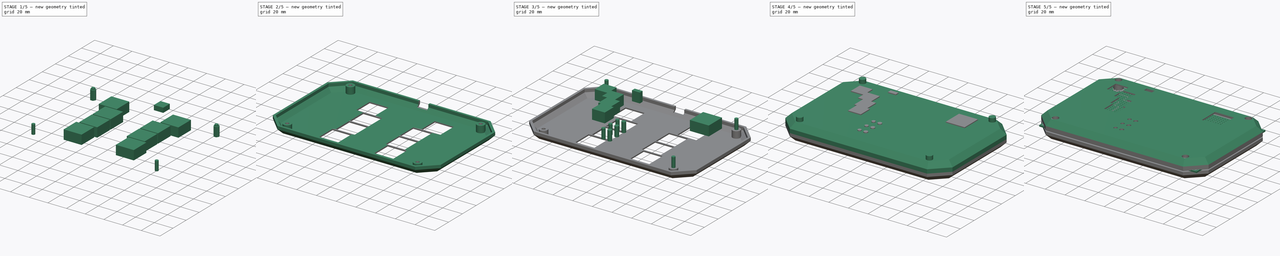
[diagram: build sequence overview — one tinted view per stage of 5, left to right]
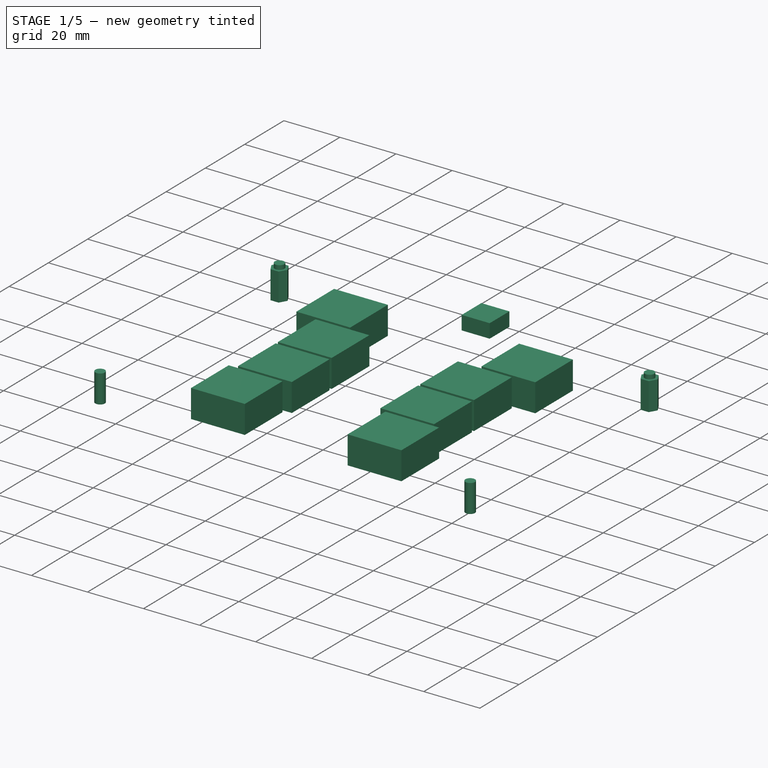
[diagram: stage 1 of 5 — iso view after this stage's code; geometry added in this stage tinted green]
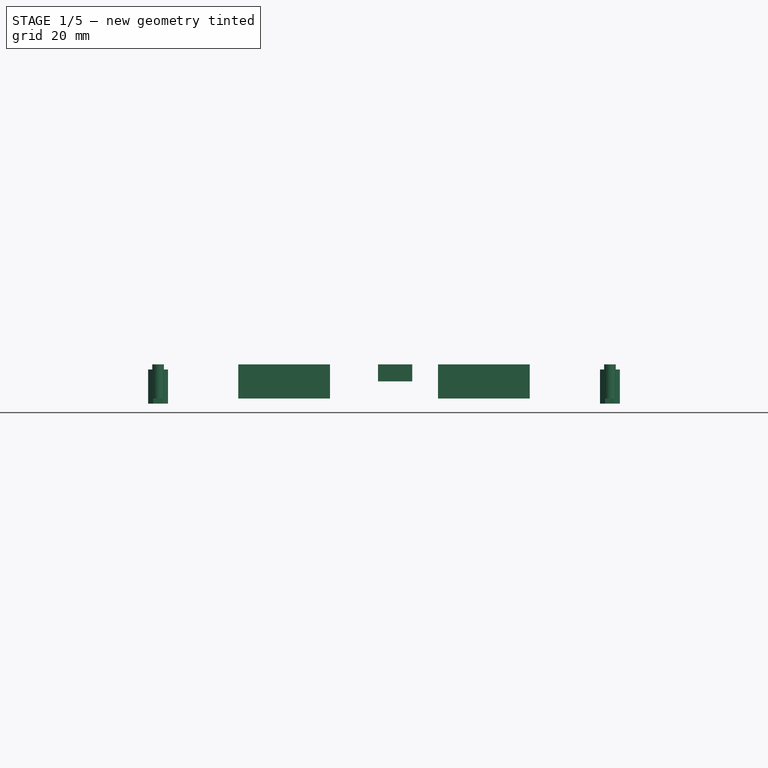
[diagram: stage 1 of 5 — front view after this stage's code; geometry added in this stage tinted green]
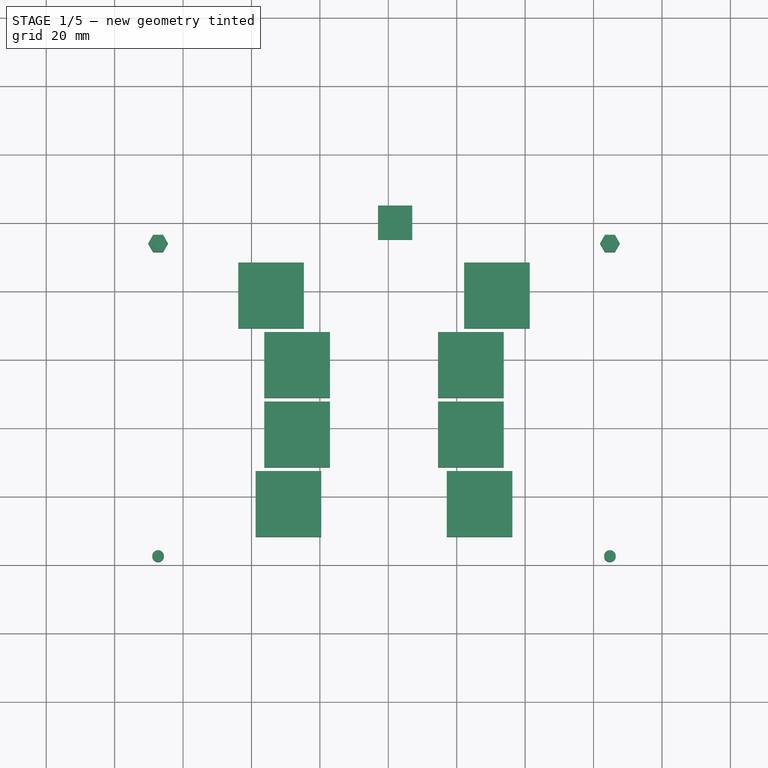
[diagram: stage 1 of 5 — top view after this stage's code; geometry added in this stage tinted green]
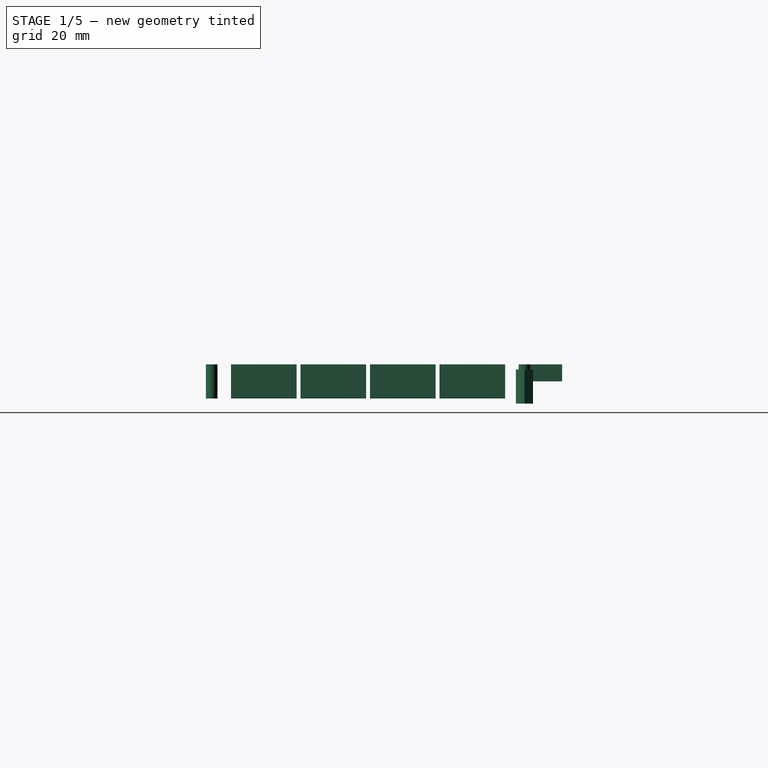
[diagram: stage 1 of 5 — right view after this stage's code; geometry added in this stage tinted green]
FCSTD DOCUMENT  (FreeCAD 0.16R6712 (Git))
Label: voctoplay 0.11
License: CreativeCommons Attribution
LicenseURL: http://creativecommons.org/licenses/by/4.0/
objects: Part::Cylinder×32, Part::Box×16, Part::Cut×8, Part::MultiFuse×8, Sketcher::SketchObject×4, Part::Extrusion×4, Part::Chamfer×4, Part::Prism×4, Part::FeaturePython×2, Drawing::FeatureViewPart×2, Drawing::FeatureViewAnnotation×2, Spreadsheet::Sheet×1, Drawing::FeaturePage×1
note: 82 computed .brp shape members not serialized (recipe doc carries the construction recipe); baked Part::Feature solids carry a one-line shape summary decoded from their .brp

FEATURE [Part::Prism] Prism002  label="Prisma002"
  Circumradius = 2.9
  Height = 10
  Placement = pos=(12.7,93.98,-11.5) rot=(0,0,1;0rad)
  Polygon = 6
  expr: Placement.Base.x = 2.54 * 5
  expr: Placement.Base.y = 2.54 * 37
FEATURE [Part::Prism] Prism003  label="Prisma003"
  Circumradius = 2.9
  Height = 10
  Placement = pos=(144.78,93.98,-11.5) rot=(0,0,1;0rad)
  Polygon = 6
  expr: Placement.Base.x = 2.54 * 57
  expr: Placement.Base.y = 2.54 * 37
FEATURE [Part::Cylinder] Cylinder022  label="Zylinder022"
  Angle = 360
  Height = 10
  Placement = pos=(144.78,93.98,-10) rot=(0,0,1;0rad)
  Radius = 1.7
  expr: Placement.Base.x = 2.54 * 57
  expr: Placement.Base.y = 2.54 * 37
  expr: Placement.Base.z = -10
FEATURE [Part::Cylinder] Cylinder023  label="Zylinder023"
  Angle = 360
  Height = 10
  Placement = pos=(12.7,93.98,-10) rot=(0,0,1;0rad)
  Radius = 1.7
  expr: Placement.Base.y = 2.54 * 37
  expr: Placement.Base.x = 2.54 * 5
  expr: Placement.Base.z = -10
FEATURE [Part::Cylinder] Cylinder024  label="Zylinder024"
  Angle = 360
  Height = 10
  Placement = pos=(144.78,2.54,-10) rot=(0,0,1;0rad)
  Radius = 1.7
  expr: Placement.Base.y = 2.54
  expr: Placement.Base.x = 2.54 * 57
  expr: Placement.Base.z = -10
FEATURE [Part::Cylinder] Cylinder025  label="Zylinder025"
  Angle = 360
  Height = 10
  Placement = pos=(12.7,2.54,-10) rot=(0,0,1;0rad)
  Radius = 1.7
  expr: Placement.Base.x = 2.54 * 5
  expr: Placement.Base.y = 2.54
  expr: Placement.Base.z = -10
FEATURE [Part::Box] Box006  label="groß001"
  Height = 10
  Length = 19.2
  Placement = pos=(102.16,69.14,-10) rot=(0,0,1;0rad)
  Width = 19.2
  expr: Placement.Base.y = 31 * 2.54 - 9.6
  expr: Placement.Base.x = 44 * 2.54 - 9.6
FEATURE [Part::Box] Box007  label="groß002"
  Height = 10
  Length = 19.2
  Placement = pos=(94.54,48.82,-10) rot=(0,0,1;0rad)
  Width = 19.2
  expr: Placement.Base.y = 23 * 2.54 - 9.6
  expr: Placement.Base.x = 41 * 2.54 - 9.6
FEATURE [Part::Box] Box008  label="groß003"
  Height = 10
  Length = 19.2
  Placement = pos=(94.54,28.5,-10) rot=(0,0,1;0rad)
  Width = 19.2
  expr: Placement.Base.y = 15 * 2.54 - 9.6
  expr: Placement.Base.x = 41 * 2.54 - 9.6
FEATURE [Part::Box] Box009  label="groß004"
  Height = 10
  Length = 19.2
  Placement = pos=(97.08,8.18,-10) rot=(0,0,1;0rad)
  Width = 19.2
  expr: Placement.Base.y = 7 * 2.54 - 9.6
  expr: Placement.Base.x = 42 * 2.54 - 9.6
FEATURE [Part::Box] Box010  label="groß005"
  Height = 10
  Length = 19.2
  Placement = pos=(41.2,8.18,-10) rot=(0,0,1;0rad)
  Width = 19.2
  expr: Placement.Base.y = 7 * 2.54 - 9.6
  expr: Placement.Base.x = 20 * 2.54 - 9.6
FEATURE [Part::Box] Box011  label="groß006"
  Height = 10
  Length = 19.2
  Placement = pos=(43.74,28.5,-10) rot=(0,0,1;0rad)
  Width = 19.2
  expr: Placement.Base.y = 15 * 2.54 - 9.6
  expr: Placement.Base.x = 21 * 2.54 - 9.6
FEATURE [Part::Box] Box012  label="groß007"
  Height = 10
  Length = 19.2
  Placement = pos=(43.74,48.82,-10) rot=(0,0,1;0rad)
  Width = 19.2
  expr: Placement.Base.y = 23 * 2.54 - 9.6
  expr: Placement.Base.x = 21 * 2.54 - 9.6
FEATURE [Part::Box] Box013  label="groß008"
  Height = 10
  Length = 19.2
  Placement = pos=(36.12,69.14,-10) rot=(0,0,1;0rad)
  Width = 19.2
  expr: Placement.Base.y = 31 * 2.54 - 9.6
  expr: Placement.Base.x = 18 * 2.54 - 9.6
FEATURE [Part::Box] Box015  label="usb buchse"
  Height = 5
  Length = 10
  Placement = pos=(77,95,-5) rot=(0,0,1;0rad)
  Width = 10
  expr: Placement.Base.z = -5
FEATURE [Part::MultiFuse] Fusion009
  Shapes = -> [Box009,Box006,Box007,Box008,Box010,Box011,Box012,Box013,Box015]
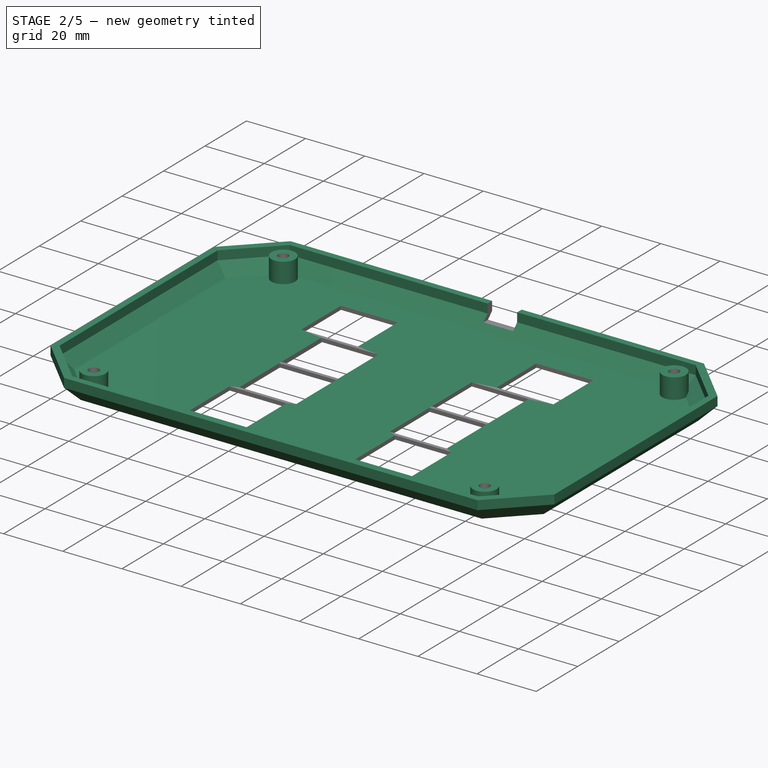
[diagram: stage 2 of 5 — iso view after this stage's code; geometry added in this stage tinted green]
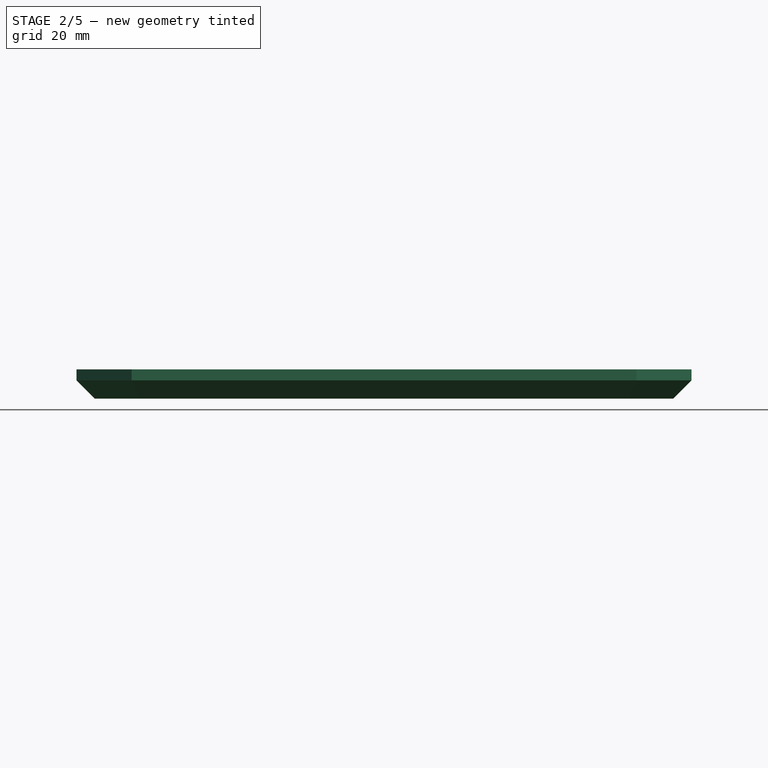
[diagram: stage 2 of 5 — front view after this stage's code; geometry added in this stage tinted green]
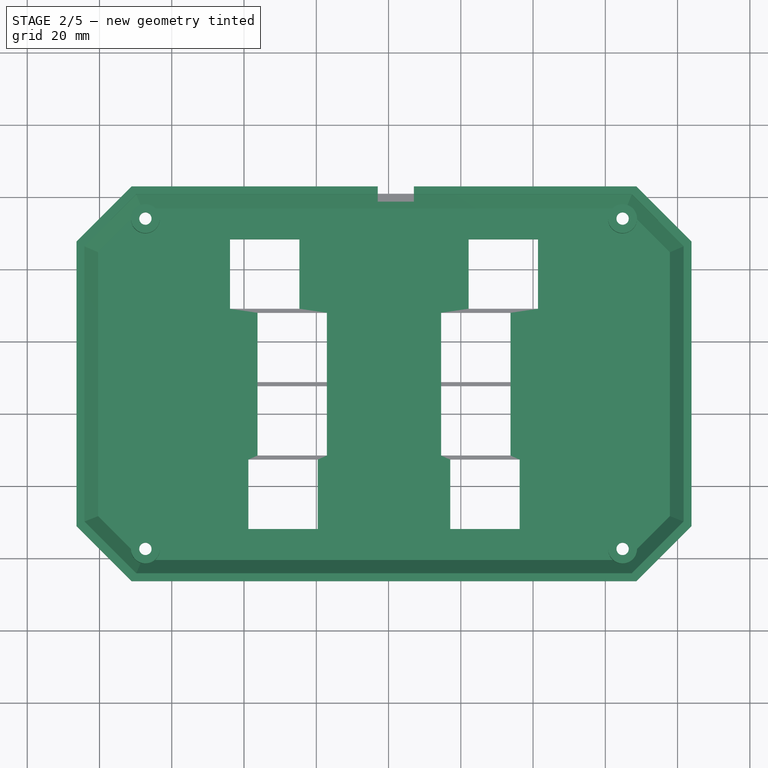
[diagram: stage 2 of 5 — top view after this stage's code; geometry added in this stage tinted green]
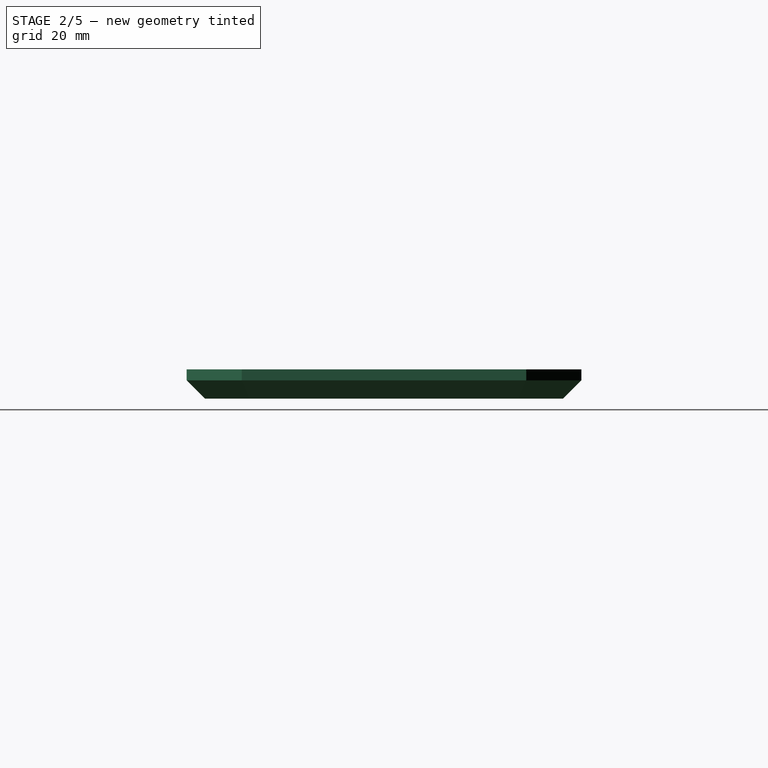
[diagram: stage 2 of 5 — right view after this stage's code; geometry added in this stage tinted green]
FEATURE [Sketcher::SketchObject] Sketch002
  expr: Constraints[23] = 4 * 2.54
  expr: Constraints[22] = 4 * 2.54
  expr: Constraints[21] = 54 * 2.54
  expr: Constraints[20] = 8 * 2.54
  expr: Constraints[19] = 30 * 2.54
  sketch-geometry (8):
    g0: LineSegment StartX=-4.20841 StartY=86.36 StartZ=0 EndX=10.16 EndY=100.728 EndZ=0
    g1: LineSegment StartX=10.16 StartY=100.728 StartZ=0 EndX=147.32 EndY=100.728 EndZ=0
    g2: LineSegment StartX=147.32 StartY=100.728 StartZ=0 EndX=161.688 EndY=86.36 EndZ=0
    g3: LineSegment StartX=161.688 StartY=86.36 StartZ=0 EndX=161.688 EndY=10.16 EndZ=0
    g4: LineSegment StartX=161.688 StartY=10.16 StartZ=0 EndX=147.32 EndY=-4.20841 EndZ=0
    g5: LineSegment StartX=147.32 StartY=-4.20841 StartZ=0 EndX=10.16 EndY=-4.20841 EndZ=0
    g6: LineSegment StartX=10.16 StartY=-4.20841 StartZ=0 EndX=-4.20841 EndY=10.16 EndZ=0
    g7: LineSegment StartX=-4.20841 StartY=10.16 StartZ=0 EndX=-4.20841 EndY=86.36 EndZ=0
  constraints (24):
    c: Coincident(g0,g1)
    c: Horizontal(g1)
    c: Coincident(g1,g2)
    c: Coincident(g2,g3)
    c: Vertical(g3)
    c: Coincident(g3,g4)
    c: Coincident(g4,g5)
    c: Horizontal(g5)
    c: Coincident(g5,g6)
    c: Coincident(g6,g7)
    c: Coincident(g7,g0)
    c: Vertical(g7)
    c: Parallel(g6,g2)
    c: Parallel(g0,g4)
    c: Angle(g-2,g0) = 2.35619
    c: Angle(g-2,g6) = 0.785398
    c: Equal(g0,g6)
    c: Equal(g6,g4)
    c: Equal(g4,g2)
    c: DistanceY(g7,g7) = 76.2
    c: Distance(g6) = 20.32
    c: DistanceX(g5,g5) = 137.16
    c: DistanceX(g-1,g5) = 10.16
    c: DistanceY(g-1,g6) = 10.16
FEATURE [Sketcher::SketchObject] Sketch003
  expr: Constraints[23] = 3.5 * 2.54
  expr: Constraints[22] = 3.5 * 2.54
  expr: Constraints[21] = 55 * 2.54
  expr: Constraints[20] = 8.5 * 2.54
  expr: Constraints[19] = 31 * 2.54
  sketch-geometry (8):
    g0: LineSegment StartX=-6.37644 StartY=87.63 StartZ=0 EndX=8.89 EndY=102.896 EndZ=0
    g1: LineSegment StartX=8.89 StartY=102.896 StartZ=0 EndX=148.59 EndY=102.896 EndZ=0
    g2: LineSegment StartX=148.59 StartY=102.896 StartZ=0 EndX=163.856 EndY=87.63 EndZ=0
    g3: LineSegment StartX=163.856 StartY=87.63 StartZ=0 EndX=163.856 EndY=8.89 EndZ=0
    g4: LineSegment StartX=163.856 StartY=8.89 StartZ=0 EndX=148.59 EndY=-6.37644 EndZ=0
    g5: LineSegment StartX=148.59 StartY=-6.37644 StartZ=0 EndX=8.89 EndY=-6.37644 EndZ=0
    g6: LineSegment StartX=8.89 StartY=-6.37644 StartZ=0 EndX=-6.37644 EndY=8.89 EndZ=0
    g7: LineSegment StartX=-6.37644 StartY=8.89 StartZ=0 EndX=-6.37644 EndY=87.63 EndZ=0
  constraints (24):
    c: Coincident(g0,g1)
    c: Horizontal(g1)
    c: Coincident(g1,g2)
    c: Coincident(g2,g3)
    c: Vertical(g3)
    c: Coincident(g3,g4)
    c: Coincident(g4,g5)
    c: Horizontal(g5)
    c: Coincident(g5,g6)
    c: Coincident(g6,g7)
    c: Coincident(g7,g0)
    c: Vertical(g7)
    c: Parallel(g6,g2)
    c: Parallel(g0,g4)
    c: Angle(g-2,g0) = 2.35619
    c: Angle(g-2,g6) = 0.785398
    c: Equal(g0,g6)
    c: Equal(g6,g4)
    c: Equal(g4,g2)
    c: DistanceY(g7,g7) = 78.74
    c: Distance(g6) = 21.59
    c: DistanceX(g5,g5) = 139.7
    c: DistanceX(g-1,g5) = 8.89
    c: DistanceY(g-1,g6) = 8.89
FEATURE [Part::Extrusion] Extrude002
  Base = -> Sketch003
  Dir = (0,0,-8.12)
  Solid = true
  expr: Dir.z = -0.5 - 2.54 * 3
FEATURE [Part::Extrusion] Extrude003
  Base = -> Sketch002
  Dir = (0,0,-6.85)
  Solid = true
  expr: Dir.z = -0.5 - 2.54 * 2.5
FEATURE [Part::Chamfer] Chamfer002
  Base = -> Extrude002
  Edges = 8 edges r=5.08: [Edge4,Edge7,Edge10,Edge13,Edge16,Edge19,Edge22,Edge24]
FEATURE [Part::Chamfer] Chamfer003
  Base = -> Extrude003
  Edges = 8 edges r=3.81: [Edge4,Edge7,Edge10,Edge13,Edge16,Edge19,Edge22,Edge24]
FEATURE [Part::Cut] Cut004  label="Cut unten"
  Base = -> Chamfer002
  Tool = -> Chamfer003
FEATURE [Part::Cylinder] Cylinder010  label="Zylinder010"
  Angle = 360
  Height = 6.85
  Placement = pos=(12.7,2.54,-6.85) rot=(0,0,1;0rad)
  Radius = 4
  expr: Placement.Base.y = 2.54
  expr: Placement.Base.x = 2.54 * 5
  expr: Height = 0.5 + 2.54 * 2.5
  expr: Placement.Base.z = -0.5 - 2.54 * 2.5
FEATURE [Part::Cylinder] Cylinder011  label="Zylinder011"
  Angle = 360
  Height = 6.85
  Placement = pos=(144.78,2.54,-6.85) rot=(0,0,1;0rad)
  Radius = 4
  expr: Placement.Base.y = 2.54
  expr: Placement.Base.x = 2.54 * 57
  expr: Height = 0.5 + 2.54 * 2.5
  expr: Placement.Base.z = -0.5 - 2.54 * 2.5
FEATURE [Part::Cylinder] Cylinder012  label="Zylinder012"
  Angle = 360
  Height = 6.85
  Placement = pos=(12.7,93.98,-6.85) rot=(0,0,1;0rad)
  Radius = 4
  expr: Placement.Base.y = 2.54 * 37
  expr: Placement.Base.x = 2.54 * 5
  expr: Height = 0.5 + 2.54 * 2.5
  expr: Placement.Base.z = -0.5 - 2.54 * 2.5
FEATURE [Part::Cylinder] Cylinder013  label="Zylinder013"
  Angle = 360
  Height = 6.85
  Placement = pos=(144.78,93.98,-6.85) rot=(0,0,1;0rad)
  Radius = 4
  expr: Placement.Base.y = 2.54 * 37
  expr: Placement.Base.x = 2.54 * 57
  expr: Height = 0.5 + 2.54 * 2.5
  expr: Placement.Base.z = -0.5 - 2.54 * 2.5
FEATURE [Part::MultiFuse] Fusion002  label="Fusion unten"
  Shapes = -> [Cylinder013,Cut004,Cylinder012,Cylinder011,Cylinder010]
FEATURE [Part::Prism] Prism  label="Prisma"
  Circumradius = 2.9
  Height = 10
  Placement = pos=(12.7,2.54,-11.5) rot=(0,0,1;0rad)
  Polygon = 6
  expr: Placement.Base.x = 2.54 * 5
  expr: Placement.Base.y = 2.54
FEATURE [Part::Prism] Prism001  label="Prisma001"
  Circumradius = 2.9
  Height = 10
  Placement = pos=(144.78,2.54,-11.5) rot=(0,0,1;0rad)
  Polygon = 6
  expr: Placement.Base.x = 2.54 * 57
  expr: Placement.Base.y = 2.54
FEATURE [Part::MultiFuse] Fusion004  label="Fusion minus unten"
  Shapes = -> [Prism,Prism001,Prism002,Cylinder022,Cylinder025,Cylinder024,Cylinder023,Prism003]
FEATURE [Part::Cut] Cut006
  Base = -> Fusion002
  Tool = -> Fusion004
FEATURE [Part::Cut] Cut010  label="unten"
  Base = -> Cut006
  Tool = -> Fusion009
FEATURE [Drawing::FeatureViewPart] Ortho  label="Ortho_0_0"
  Direction = (0,0,-1)
  HiddenWidth = 0.15
  LineWidth = 0.35
  Rotation = 0
  ShowHiddenLines = false
  ShowSmoothLines = false
  Source = -> Cut010
  Tolerance = 0.05
  ViewResult = <blob: 5567 chars omitted>
  Visible = true
  X = 183.74
  Y = 268.26
FEATURE [Drawing::FeatureViewPart] Ortho001  label="Ortho_0_001"
  Direction = (0,0,1)
  HiddenWidth = 0.15
  LineWidth = 0.35
  Rotation = 0
  ShowHiddenLines = false
  ShowSmoothLines = false
  Source = -> Cut009
  Tolerance = 0.05
  ViewResult = <blob: 3506 chars omitted>
  Visible = true
  X = 26.26
  Y = 138.26
FEATURE [Drawing::FeatureViewAnnotation] Annotation  label="Annotation vorne"
  Font = Sans
  Rotation = 0
  Scale = 5
  Text = vorne
  ViewResult = <g transform="translate(95,30) rotate(0)">\n<text id="Annotation vorne"\n font-family="Sans"\n font-size="5"\n fill="#000000">\n<tspan x="0" dy="1em">vorne</tspan>\n<tspan x="0" dy="1em"></tspan>\n</text>\n</g>
  Visible = true
  X = 95
  Y = 30
FEATURE [Drawing::FeatureViewAnnotation] Annotation001  label="Annotation hinten"
  Font = Sans
  Rotation = 0
  Scale = 5
  Text = hinten
  ViewResult = <g transform="translate(95,160) rotate(0)">\n<text id="Annotation hinten"\n font-family="Sans"\n font-size="5"\n fill="#000000">\n<tspan x="0" dy="1em">hinten</tspan>\n</text>\n</g>
  Visible = true
  X = 95
  Y = 160
FEATURE [Drawing::FeaturePage] Page  label="Papier drucken"
  Group = -> [Ortho,Ortho001,Annotation,Annotation001]
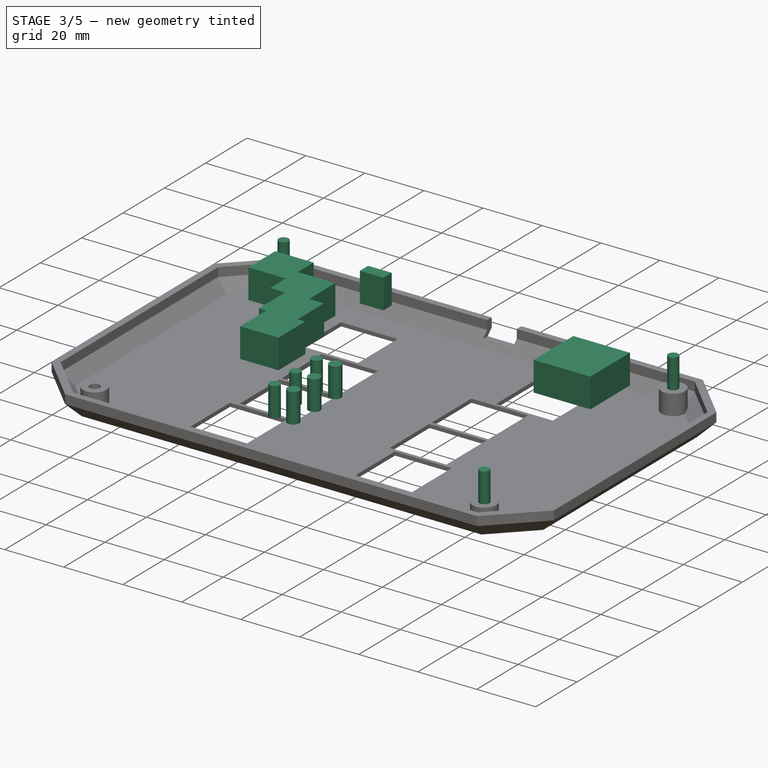
[diagram: stage 3 of 5 — iso view after this stage's code; geometry added in this stage tinted green]
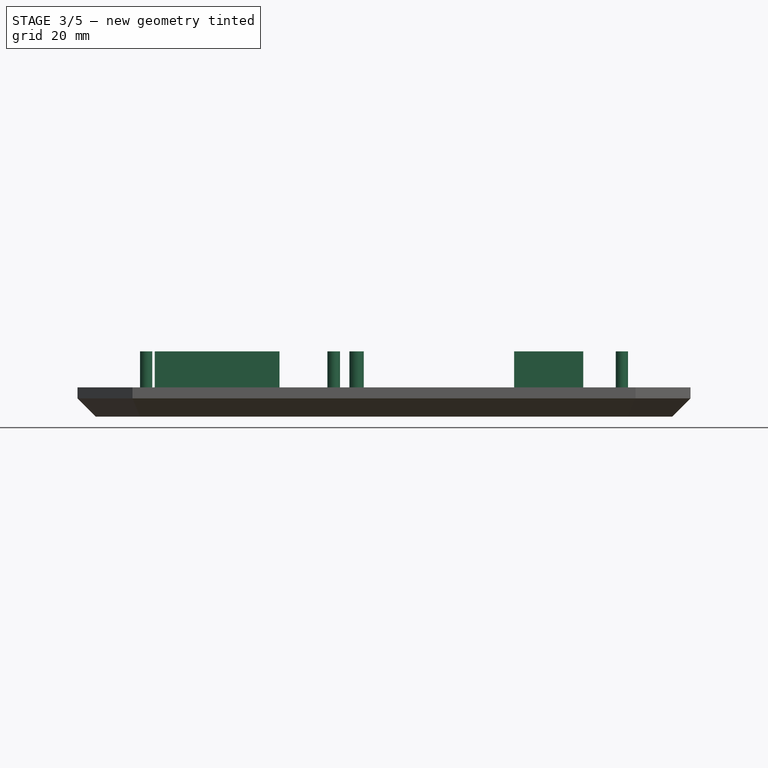
[diagram: stage 3 of 5 — front view after this stage's code; geometry added in this stage tinted green]
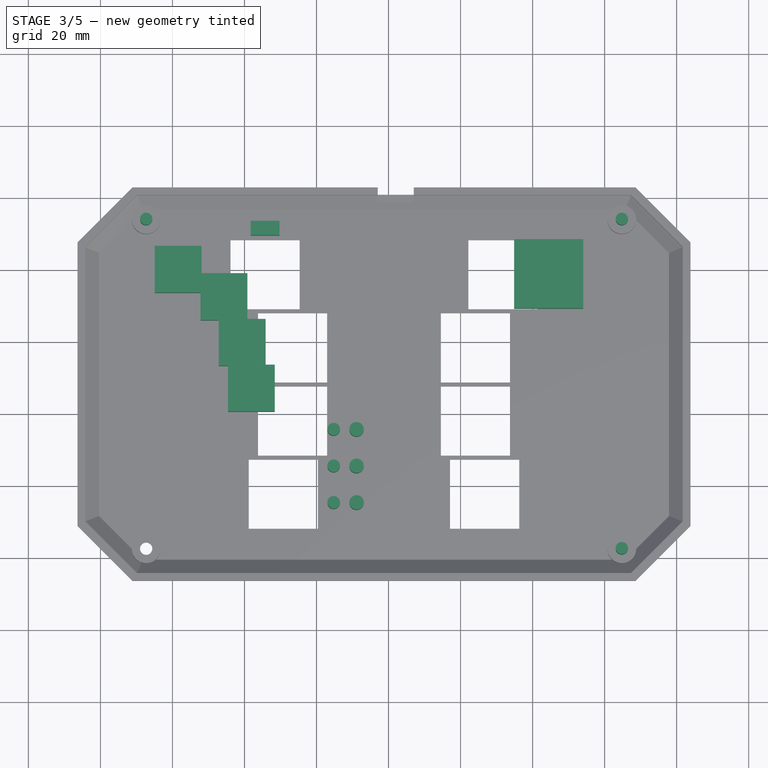
[diagram: stage 3 of 5 — top view after this stage's code; geometry added in this stage tinted green]
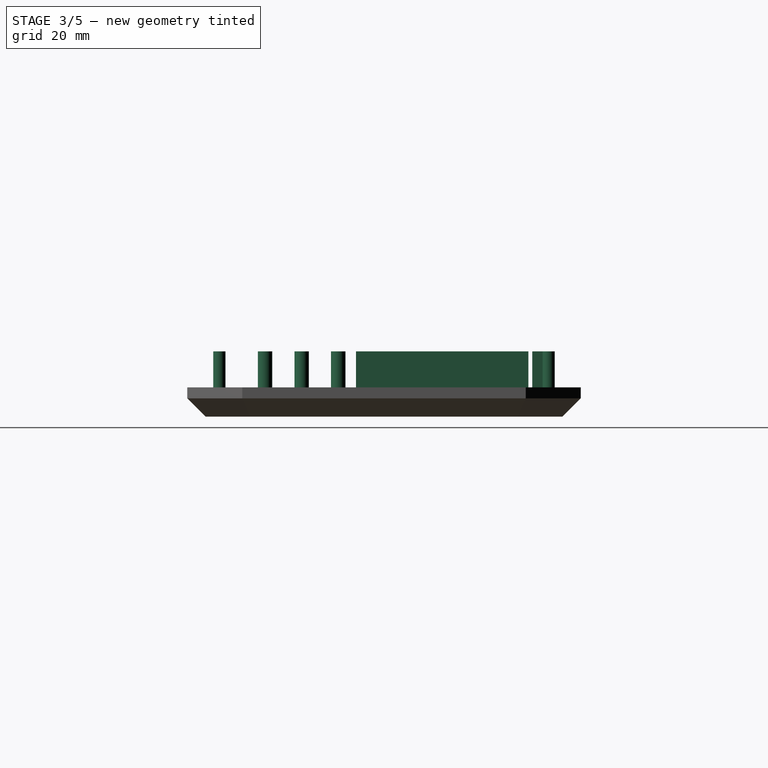
[diagram: stage 3 of 5 — right view after this stage's code; geometry added in this stage tinted green]
FEATURE [Part::Cylinder] Cylinder019  label="Zylinder019"
  Angle = 360
  Height = 10
  Placement = pos=(12.7,93.98,0) rot=(0,0,1;0rad)
  Radius = 1.7
  expr: Placement.Base.y = 2.54 * 37
  expr: Placement.Base.x = 2.54 * 5
  expr: Placement.Base.z = 0
FEATURE [Part::Cylinder] Cylinder020  label="Zylinder020"
  Angle = 360
  Height = 10
  Placement = pos=(144.78,2.54,0) rot=(0,0,1;0rad)
  Radius = 1.7
  expr: Placement.Base.y = 2.54
  expr: Placement.Base.x = 2.54 * 57
  expr: Placement.Base.z = 0
FEATURE [Part::Cylinder] Cylinder021  label="Zylinder021"
  Angle = 360
  Height = 10
  Placement = pos=(144.78,93.98,0) rot=(0,0,1;0rad)
  Radius = 1.7
  expr: Placement.Base.x = 2.54 * 57
  expr: Placement.Base.y = 2.54 * 37
  expr: Placement.Base.z = 0
FEATURE [Part::Box] Box001  label="klein"
  Height = 10
  Length = 13
  Placement = pos=(35.41,40.49,0) rot=(0,0,1;0rad)
  Width = 13
  expr: Placement.Base.y = 18.5 * 2.54 - 6.5
  expr: Placement.Base.x = 2.54 * 16.5 - 6.5
FEATURE [Part::Box] Box002  label="groß"
  Height = 10
  Length = 19.2
  Placement = pos=(114.86,69.14,0) rot=(0,0,1;0rad)
  Width = 19.2
  expr: Placement.Base.y = 31 * 2.54 - 9.6
  expr: Placement.Base.x = 49 * 2.54 - 9.6
FEATURE [Part::Box] Box003  label="klein001"
  Height = 10
  Length = 13
  Placement = pos=(32.87,53.19,0) rot=(0,0,1;0rad)
  Width = 13
  expr: Placement.Base.y = 23.5 * 2.54 - 6.5
  expr: Placement.Base.x = 2.54 * 15.5 - 6.5
FEATURE [Part::Box] Box004  label="klein002"
  Height = 10
  Length = 13
  Placement = pos=(27.79,65.89,0) rot=(0,0,1;0rad)
  Width = 13
  expr: Placement.Base.y = 28.5 * 2.54 - 6.5
  expr: Placement.Base.x = 2.54 * 13.5 - 6.5
FEATURE [Part::Box] Box005  label="klein003"
  Height = 10
  Length = 13
  Placement = pos=(15.09,73.51,0) rot=(0,0,1;0rad)
  Width = 13
  expr: Placement.Base.y = 31.5 * 2.54 - 6.5
  expr: Placement.Base.x = 2.54 * 8.5 - 6.5
FEATURE [Part::Cylinder] Cylinder026  label="Stream On"
  Angle = 360
  Height = 10
  Placement = pos=(71.12,15.24,0) rot=(0,0,1;0rad)
  Radius = 2
  expr: Placement.Base.y = 2.54 * 6
  expr: Placement.Base.x = 2.54 * 28
FEATURE [Part::Cylinder] Cylinder027  label="Stream Pause"
  Angle = 360
  Height = 10
  Placement = pos=(71.12,25.4,0) rot=(0,0,1;0rad)
  Radius = 2
  expr: Placement.Base.y = 2.54 * 10
  expr: Placement.Base.x = 2.54 * 28
FEATURE [Part::Cylinder] Cylinder028  label="NoStream"
  Angle = 360
  Height = 10
  Placement = pos=(71.12,35.56,0) rot=(0,0,1;0rad)
  Radius = 2
  expr: Placement.Base.y = 2.54 * 14
  expr: Placement.Base.x = 2.54 * 28
FEATURE [Part::Cylinder] Cylinder029  label="Zylinder029 rot"
  Angle = 360
  Height = 10
  Placement = pos=(64.77,15.24,0) rot=(0,0,1;0rad)
  Radius = 1.75
  expr: Placement.Base.y = 2.54 * 6
  expr: Placement.Base.x = 2.54 * 25.5
FEATURE [Part::Cylinder] Cylinder030  label="Zylinder030 rot"
  Angle = 360
  Height = 10
  Placement = pos=(64.77,25.4,0) rot=(0,0,1;0rad)
  Radius = 1.75
  expr: Placement.Base.y = 2.54 * 10
  expr: Placement.Base.x = 2.54 * 25.5
FEATURE [Part::Cylinder] Cylinder031  label="Zylinder031 gruen"
  Angle = 360
  Height = 10
  Placement = pos=(64.77,35.56,0) rot=(0,0,1;0rad)
  Radius = 1.75
  expr: Placement.Base.y = 2.54 * 14
  expr: Placement.Base.x = 2.54 * 25.5
FEATURE [Part::Box] Box014  label="Würfel on off"
  Height = 10
  Length = 8
  Placement = pos=(41.72,89.44,0) rot=(0,0,1;0rad)
  Width = 4
  expr: Placement.Base.y = 2.54 * 36 - 2
  expr: Placement.Base.x = 18 * 2.54 - 4
FEATURE [Part::MultiFuse] Fusion007  label="Fusion ausschnitte buttons"
  Shapes = -> [Box005,Box001,Box002,Box003,Box004,Box014,Cylinder030,Cylinder027,Cylinder026,Cylinder029,Cylinder028,Cylinder031]
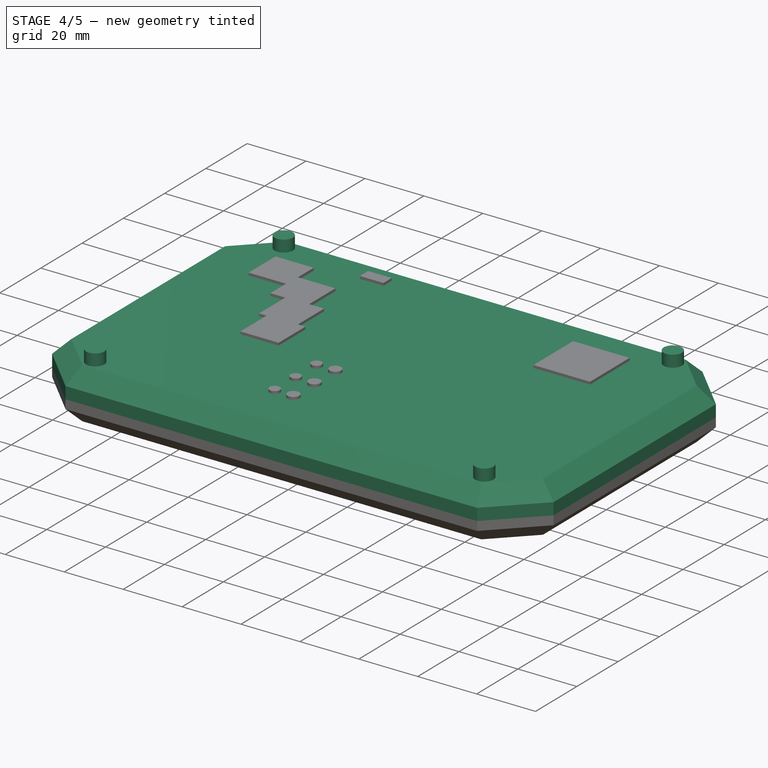
[diagram: stage 4 of 5 — iso view after this stage's code; geometry added in this stage tinted green]
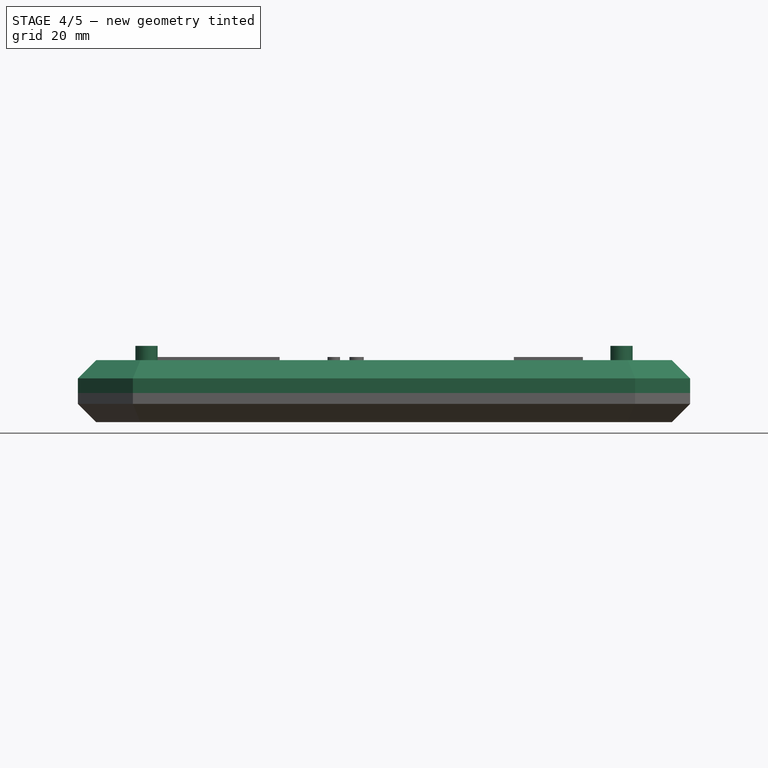
[diagram: stage 4 of 5 — front view after this stage's code; geometry added in this stage tinted green]
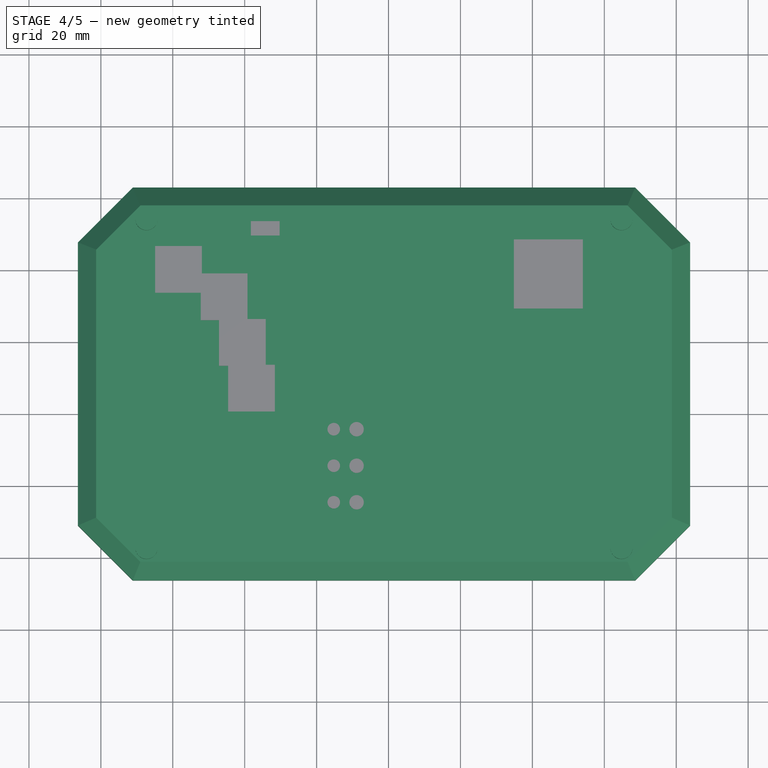
[diagram: stage 4 of 5 — top view after this stage's code; geometry added in this stage tinted green]
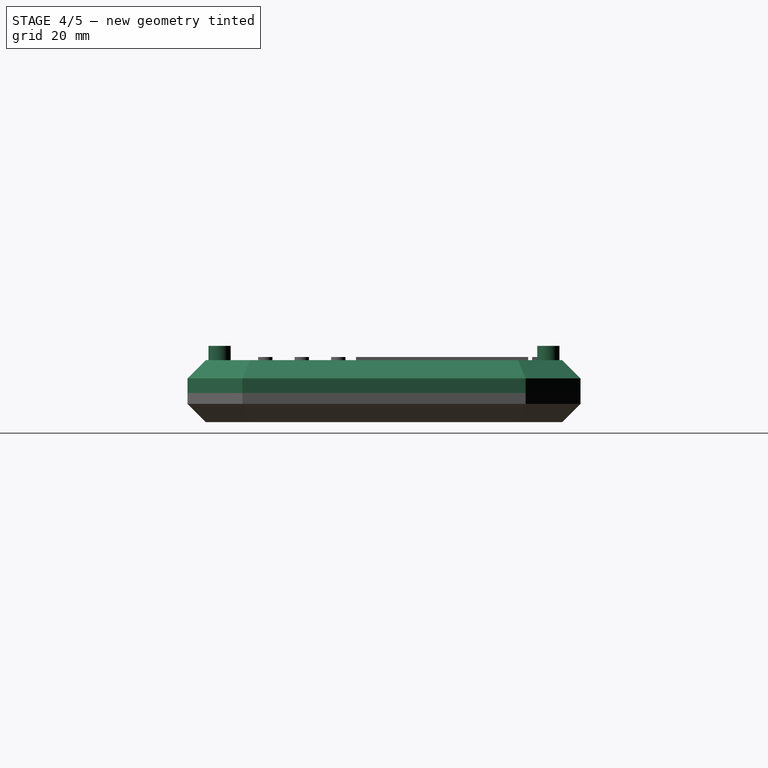
[diagram: stage 4 of 5 — right view after this stage's code; geometry added in this stage tinted green]
FEATURE [Sketcher::SketchObject] Sketch
  expr: Constraints[23] = 4 * 2.54
  expr: Constraints[22] = 4 * 2.54
  expr: Constraints[21] = 54 * 2.54
  expr: Constraints[20] = 8 * 2.54
  expr: Constraints[19] = 30 * 2.54
  sketch-geometry (8):
    g0: LineSegment StartX=-4.20841 StartY=86.36 StartZ=0 EndX=10.16 EndY=100.728 EndZ=0
    g1: LineSegment StartX=10.16 StartY=100.728 StartZ=0 EndX=147.32 EndY=100.728 EndZ=0
    g2: LineSegment StartX=147.32 StartY=100.728 StartZ=0 EndX=161.688 EndY=86.36 EndZ=0
    g3: LineSegment StartX=161.688 StartY=86.36 StartZ=0 EndX=161.688 EndY=10.16 EndZ=0
    g4: LineSegment StartX=161.688 StartY=10.16 StartZ=0 EndX=147.32 EndY=-4.20841 EndZ=0
    g5: LineSegment StartX=147.32 StartY=-4.20841 StartZ=0 EndX=10.16 EndY=-4.20841 EndZ=0
    g6: LineSegment StartX=10.16 StartY=-4.20841 StartZ=0 EndX=-4.20841 EndY=10.16 EndZ=0
    g7: LineSegment StartX=-4.20841 StartY=10.16 StartZ=0 EndX=-4.20841 EndY=86.36 EndZ=0
  constraints (24):
    c: Coincident(g0,g1)
    c: Horizontal(g1)
    c: Coincident(g1,g2)
    c: Coincident(g2,g3)
    c: Vertical(g3)
    c: Coincident(g3,g4)
    c: Coincident(g4,g5)
    c: Horizontal(g5)
    c: Coincident(g5,g6)
    c: Coincident(g6,g7)
    c: Coincident(g7,g0)
    c: Vertical(g7)
    c: Parallel(g6,g2)
    c: Parallel(g0,g4)
    c: Angle(g-2,g0) = 2.35619
    c: Angle(g-2,g6) = 0.785398
    c: Equal(g0,g6)
    c: Equal(g6,g4)
    c: Equal(g4,g2)
    c: DistanceY(g7,g7) = 76.2
    c: Distance(g6) = 20.32
    c: DistanceX(g5,g5) = 137.16
    c: DistanceX(g-1,g5) = 10.16
    c: DistanceY(g-1,g6) = 10.16
FEATURE [Sketcher::SketchObject] Sketch001
  expr: Constraints[23] = 3.5 * 2.54
  expr: Constraints[22] = 3.5 * 2.54
  expr: Constraints[21] = 55 * 2.54
  expr: Constraints[20] = 8.5 * 2.54
  expr: Constraints[19] = 31 * 2.54
  sketch-geometry (8):
    g0: LineSegment StartX=-6.37644 StartY=87.63 StartZ=0 EndX=8.89 EndY=102.896 EndZ=0
    g1: LineSegment StartX=8.89 StartY=102.896 StartZ=0 EndX=148.59 EndY=102.896 EndZ=0
    g2: LineSegment StartX=148.59 StartY=102.896 StartZ=0 EndX=163.856 EndY=87.63 EndZ=0
    g3: LineSegment StartX=163.856 StartY=87.63 StartZ=0 EndX=163.856 EndY=8.89 EndZ=0
    g4: LineSegment StartX=163.856 StartY=8.89 StartZ=0 EndX=148.59 EndY=-6.37644 EndZ=0
    g5: LineSegment StartX=148.59 StartY=-6.37644 StartZ=0 EndX=8.89 EndY=-6.37644 EndZ=0
    g6: LineSegment StartX=8.89 StartY=-6.37644 StartZ=0 EndX=-6.37644 EndY=8.89 EndZ=0
    g7: LineSegment StartX=-6.37644 StartY=8.89 StartZ=0 EndX=-6.37644 EndY=87.63 EndZ=0
  constraints (24):
    c: Coincident(g0,g1)
    c: Horizontal(g1)
    c: Coincident(g1,g2)
    c: Coincident(g2,g3)
    c: Vertical(g3)
    c: Coincident(g3,g4)
    c: Coincident(g4,g5)
    c: Horizontal(g5)
    c: Coincident(g5,g6)
    c: Coincident(g6,g7)
    c: Coincident(g7,g0)
    c: Vertical(g7)
    c: Parallel(g6,g2)
    c: Parallel(g0,g4)
    c: Angle(g-2,g0) = 2.35619
    c: Angle(g-2,g6) = 0.785398
    c: Equal(g0,g6)
    c: Equal(g6,g4)
    c: Equal(g4,g2)
    c: DistanceY(g7,g7) = 78.74
    c: Distance(g6) = 21.59
    c: DistanceX(g5,g5) = 139.7
    c: DistanceX(g-1,g5) = 8.89
    c: DistanceY(g-1,g6) = 8.89
FEATURE [Part::Extrusion] Extrude
  Base = -> Sketch001
  Dir = (0,0,9.12)
  Solid = true
  expr: Dir.z = 1.5 + 2.54 * 3
FEATURE [Part::Extrusion] Extrude001
  Base = -> Sketch
  Dir = (0,0,7.85)
  Solid = true
  expr: Dir.z = 1.5 + 2.54 * 2.5
FEATURE [Part::Chamfer] Chamfer
  Base = -> Extrude
  Edges = 8 edges r=5.08: [Edge4,Edge7,Edge10,Edge13,Edge16,Edge19,Edge22,Edge24]
FEATURE [Part::Chamfer] Chamfer001
  Base = -> Extrude001
  Edges = 8 edges r=3.81: [Edge4,Edge7,Edge10,Edge13,Edge16,Edge19,Edge22,Edge24]
FEATURE [Part::Cylinder] Cylinder006  label="Zylinder006"
  Angle = 360
  Height = 6.25
  Placement = pos=(12.7,2.54,1.6) rot=(0,0,1;0rad)
  Radius = 4.3
  expr: Placement.Base.y = 2.54
  expr: Placement.Base.x = 2.54 * 5
  expr: Height = 1.5 - Spreadsheet.tp + 2.54 * 2.5
  expr: Placement.Base.z = Spreadsheet.tp
FEATURE [Part::Cylinder] Cylinder007  label="Zylinder007"
  Angle = 360
  Height = 6.25
  Placement = pos=(144.78,2.54,1.6) rot=(0,0,1;0rad)
  Radius = 4.3
  expr: Placement.Base.y = 2.54
  expr: Placement.Base.x = 2.54 * 57
  expr: Height = 1.5 - Spreadsheet.tp + 2.54 * 2.5
  expr: Placement.Base.z = Spreadsheet.tp
FEATURE [Part::Cylinder] Cylinder008  label="Zylinder008"
  Angle = 360
  Height = 6.25
  Placement = pos=(12.7,93.98,1.6) rot=(0,0,1;0rad)
  Radius = 4.3
  expr: Placement.Base.y = 2.54 * 37
  expr: Placement.Base.x = 2.54 * 5
  expr: Height = 1.5 - Spreadsheet.tp + 2.54 * 2.5
  expr: Placement.Base.z = Spreadsheet.tp
FEATURE [Part::Cylinder] Cylinder009  label="Zylinder009"
  Angle = 360
  Height = 6.25
  Placement = pos=(144.78,93.98,1.6) rot=(0,0,1;0rad)
  Radius = 4.3
  expr: Placement.Base.y = 2.54 * 37
  expr: Placement.Base.x = 2.54 * 57
  expr: Height = 1.5 - Spreadsheet.tp + 2.54 * 2.5
  expr: Placement.Base.z = Spreadsheet.tp
FEATURE [Part::Cylinder] Cylinder014  label="Zylinder014"
  Angle = 360
  Height = 10
  Placement = pos=(12.7,2.54,3.1) rot=(0,0,1;0rad)
  Radius = 3.1
  expr: Placement.Base.x = 2.54 * 5
  expr: Placement.Base.y = 2.54
  expr: Placement.Base.z = Spreadsheet.tp + 1.5
FEATURE [Part::Cylinder] Cylinder015  label="Zylinder015"
  Angle = 360
  Height = 10
  Placement = pos=(12.7,93.98,3.1) rot=(0,0,1;0rad)
  Radius = 3.1
  expr: Placement.Base.y = 2.54 * 37
  expr: Placement.Base.x = 2.54 * 5
  expr: Placement.Base.z = Spreadsheet.tp + 1.5
FEATURE [Part::Cylinder] Cylinder016  label="Zylinder016"
  Angle = 360
  Height = 10
  Placement = pos=(144.78,2.54,3.1) rot=(0,0,1;0rad)
  Radius = 3.1
  expr: Placement.Base.y = 2.54
  expr: Placement.Base.x = 2.54 * 57
  expr: Placement.Base.z = Spreadsheet.tp + 1.5
FEATURE [Part::Cylinder] Cylinder017  label="Zylinder017"
  Angle = 360
  Height = 10
  Placement = pos=(144.78,93.98,3.1) rot=(0,0,1;0rad)
  Radius = 3.1
  expr: Placement.Base.x = 2.54 * 57
  expr: Placement.Base.y = 2.54 * 37
  expr: Placement.Base.z = Spreadsheet.tp + 1.5
FEATURE [Part::Cylinder] Cylinder018  label="Zylinder018"
  Angle = 360
  Height = 10
  Placement = pos=(12.7,2.54,0) rot=(0,0,1;0rad)
  Radius = 1.7
  expr: Placement.Base.x = 2.54 * 5
  expr: Placement.Base.y = 2.54
  expr: Placement.Base.z = 0
FEATURE [Part::MultiFuse] Fusion003  label="Fusion Schrauben-Löcher"
  Shapes = -> [Cylinder018,Cylinder014,Cylinder017,Cylinder020,Cylinder015,Cylinder019,Cylinder016,Cylinder021]
FEATURE [Part::MultiFuse] Fusion008
  Shapes = -> [Fusion007,Fusion003]
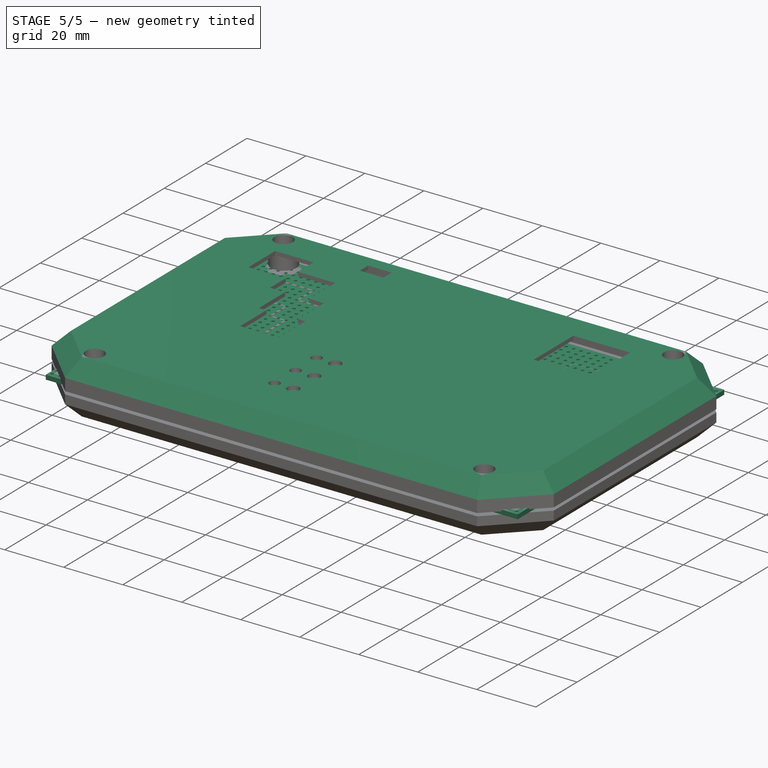
[diagram: stage 5 of 5 — iso view after this stage's code; geometry added in this stage tinted green]
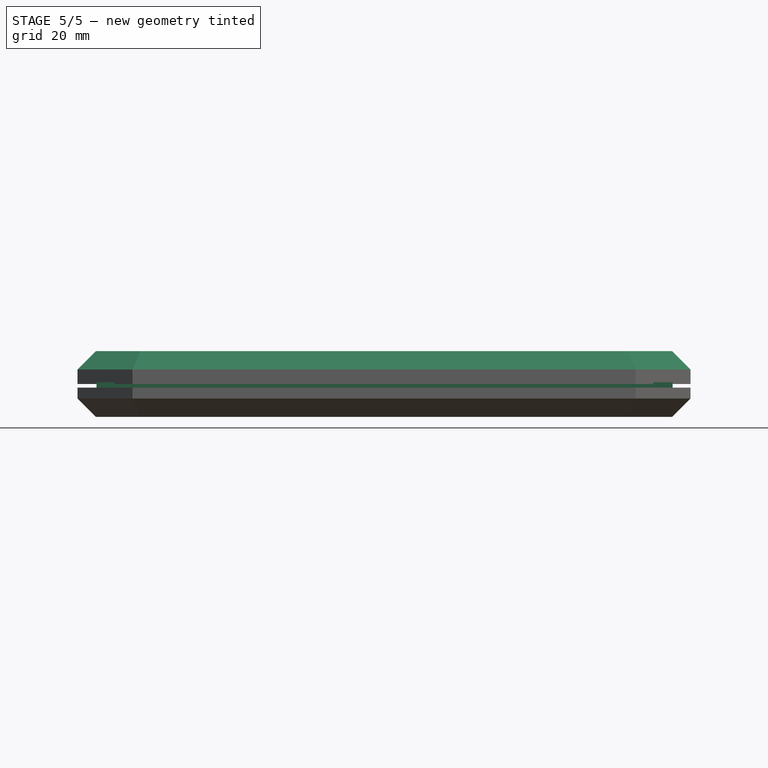
[diagram: stage 5 of 5 — front view after this stage's code; geometry added in this stage tinted green]
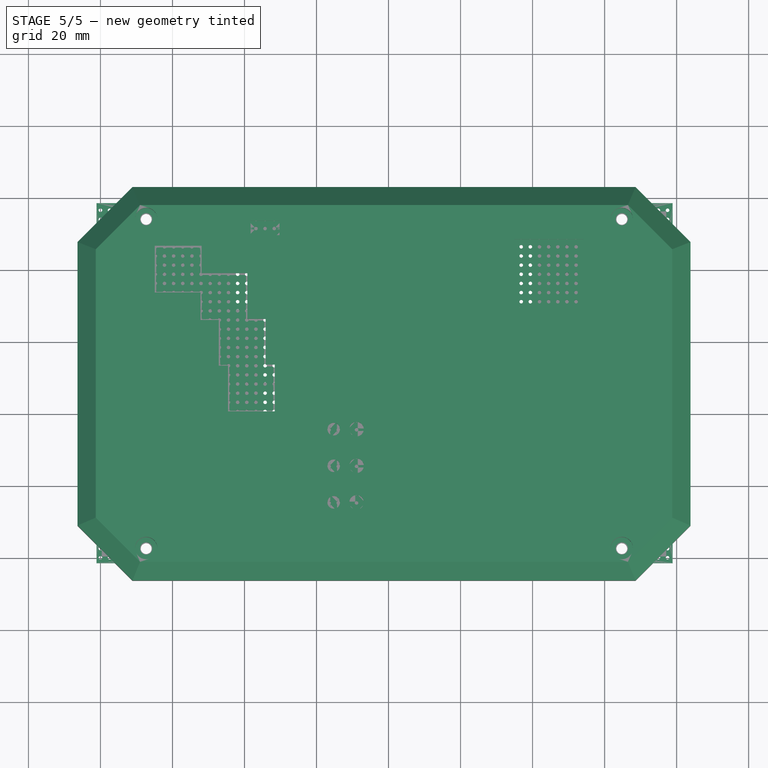
[diagram: stage 5 of 5 — top view after this stage's code; geometry added in this stage tinted green]
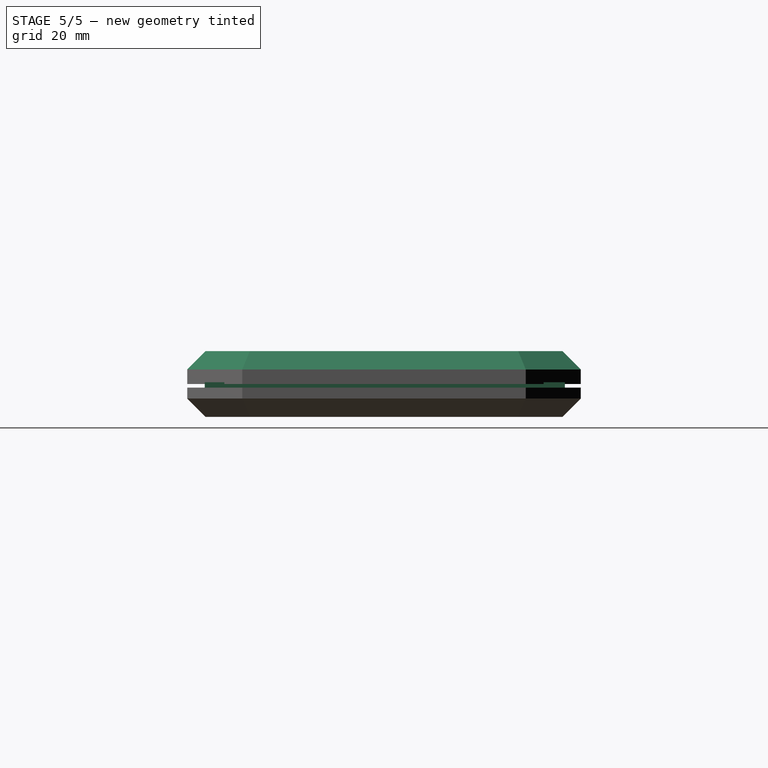
[diagram: stage 5 of 5 — right view after this stage's code; geometry added in this stage tinted green]
FEATURE [Part::Box] Box  label="Würfel"
  Height = 1.5
  Length = 160
  Placement = pos=(-1.1,-1.5,0) rot=(0,0,1;0rad)
  Width = 100
FEATURE [Part::Cylinder] Cylinder  label="Zylinder"
  Angle = 360
  Height = 2
  Radius = 0.5
FEATURE [Part::FeaturePython] Array  # Draft array (typed FeaturePython)
  Angle = 360
  ArrayType = 0
  Axis = (0,0,1)
  Base = -> Cylinder
  Center = (0,0,0)
  Fuse = false
  IntervalAxis = (0,0,0)
  IntervalX = (2.54,0,0)
  IntervalY = (0,2.54,0)
  IntervalZ = (0,0,0)
  NumberPolar = 1
  NumberX = 32
  NumberY = 39
  NumberZ = 1
FEATURE [Part::Cylinder] Cylinder001  label="Zylinder001"
  Angle = 360
  Height = 10
  Placement = pos=(12.7,2.54,0) rot=(0,0,1;0rad)
  Radius = 1.5
  expr: Placement.Base.y = 2.54
  expr: Placement.Base.x = 2.54 * 5
FEATURE [Part::Cylinder] Cylinder002  label="Zylinder002"
  Angle = 360
  Height = 10
  Placement = pos=(12.7,93.98,0) rot=(0,0,1;0rad)
  Radius = 1.5
  expr: Placement.Base.y = 2.54 * 37
  expr: Placement.Base.x = 2.54 * 5
FEATURE [Part::Cylinder] Cylinder003  label="Zylinder003"
  Angle = 360
  Height = 10
  Placement = pos=(144.78,2.54,0) rot=(0,0,1;0rad)
  Radius = 1.5
  expr: Placement.Base.y = 2.54
  expr: Placement.Base.x = 2.54 * 57
FEATURE [Part::Cylinder] Cylinder004  label="Zylinder004"
  Angle = 360
  Height = 10
  Placement = pos=(144.78,93.98,0) rot=(0,0,1;0rad)
  Radius = 1.5
  expr: Placement.Base.x = 2.54 * 57
  expr: Placement.Base.y = 2.54 * 37
FEATURE [Spreadsheet::Sheet] Spreadsheet
  cells = A2=perfboard thickness; B2(tp)=1.6; C2=mm
FEATURE [Part::Cylinder] Cylinder005  label="Zylinder005"
  Angle = 360
  Height = 2
  Radius = 0.5
FEATURE [Part::FeaturePython] Array001  # Draft array (typed FeaturePython)
  Angle = 360
  ArrayType = 0
  Axis = (0,0,1)
  Base = -> Cylinder005
  Center = (0,0,0)
  Fuse = false
  IntervalAxis = (0,0,0)
  IntervalX = (2.54,0,0)
  IntervalY = (0,2.54,0)
  IntervalZ = (0,0,0)
  NumberPolar = 1
  NumberX = 32
  NumberY = 39
  NumberZ = 1
  Placement = pos=(78.74,0,0) rot=(0,0,1;0rad)
FEATURE [Part::Cut] Cut
  Base = -> Box
  Tool = -> Array
FEATURE [Part::Cut] Cut001
  Base = -> Cut
  Tool = -> Array001
FEATURE [Part::MultiFuse] Fusion
  Shapes = -> [Cylinder004,Cylinder003,Cylinder002,Cylinder001]
FEATURE [Part::Cut] Cut002  label="Lochrasterplatine"
  Base = -> Cut001
  Tool = -> Fusion
FEATURE [Part::Cut] Cut003  label="Cut oben"
  Base = -> Chamfer
  Tool = -> Chamfer001
FEATURE [Part::MultiFuse] Fusion001  label="Fusion oben"
  Shapes = -> [Cylinder009,Cylinder008,Cylinder006,Cylinder007,Cut003]
FEATURE [Part::Cut] Cut009  label="oben"
  Base = -> Fusion001
  Placement = pos=(0,0,1) rot=(0,0,1;0rad)
  Tool = -> Fusion008
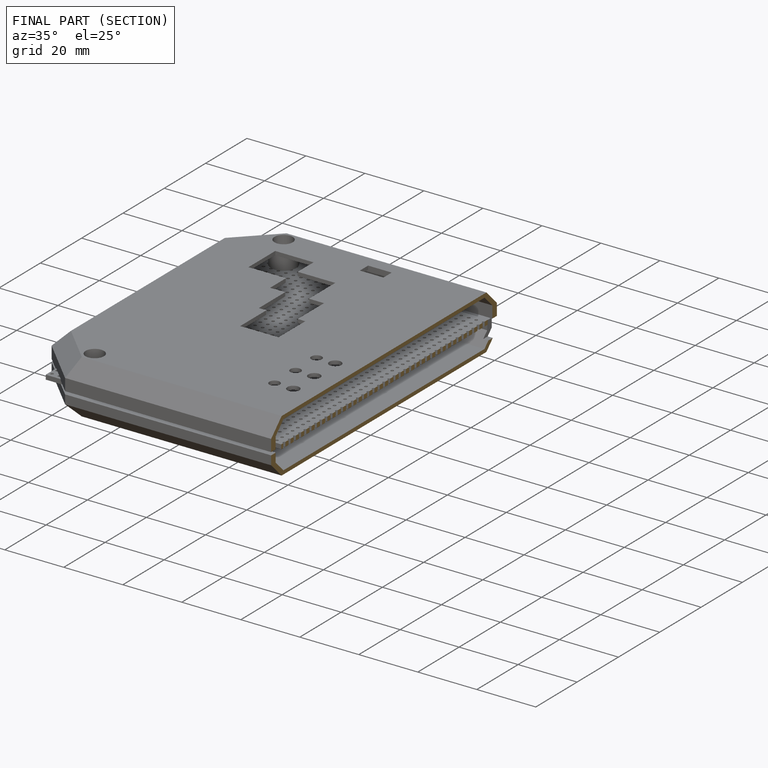
[diagram: finished part — half-section view (interior)]
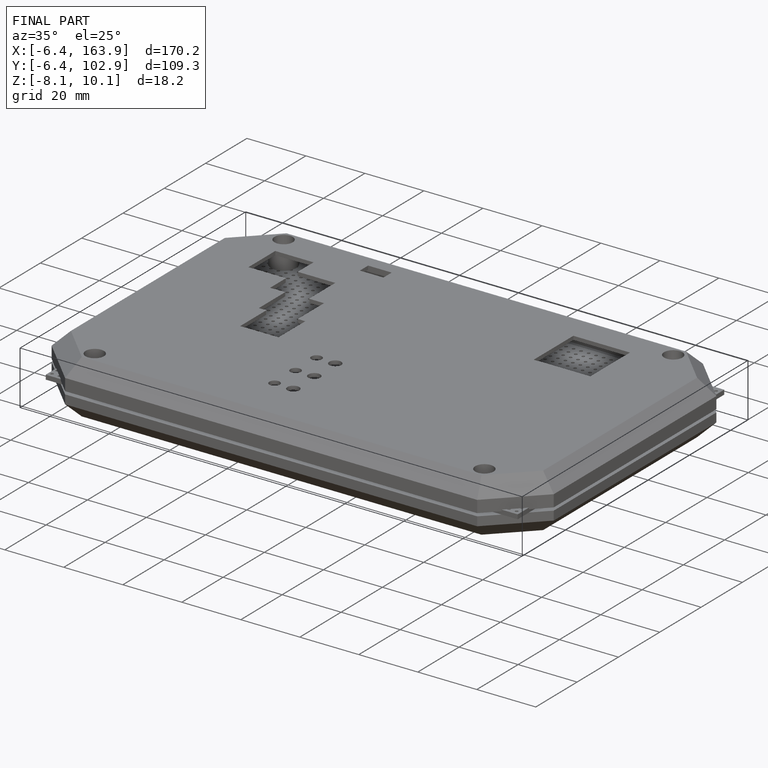
[diagram: finished part — iso view with bounding-box wireframe]
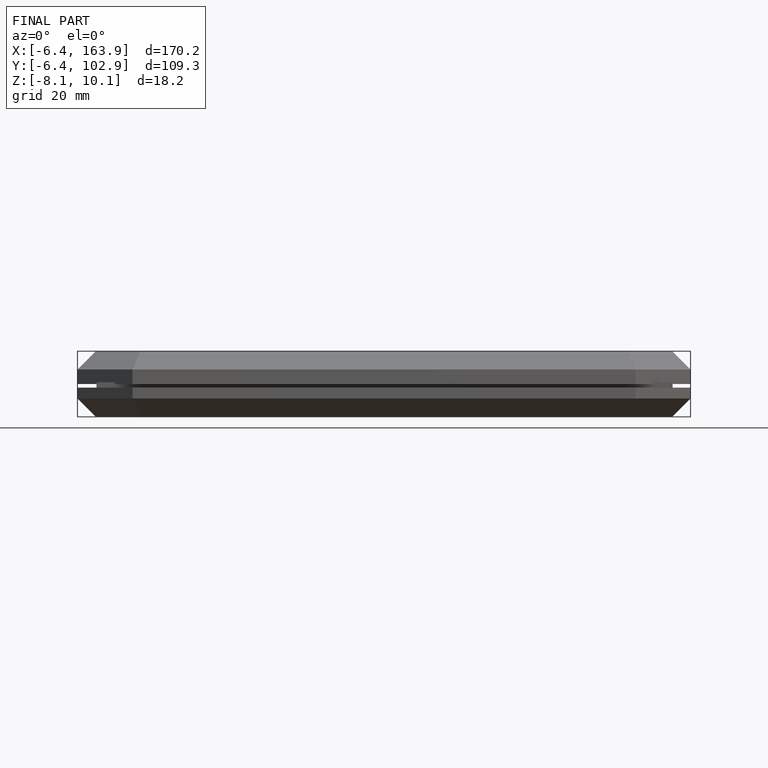
[diagram: finished part — front view with bounding-box wireframe]
